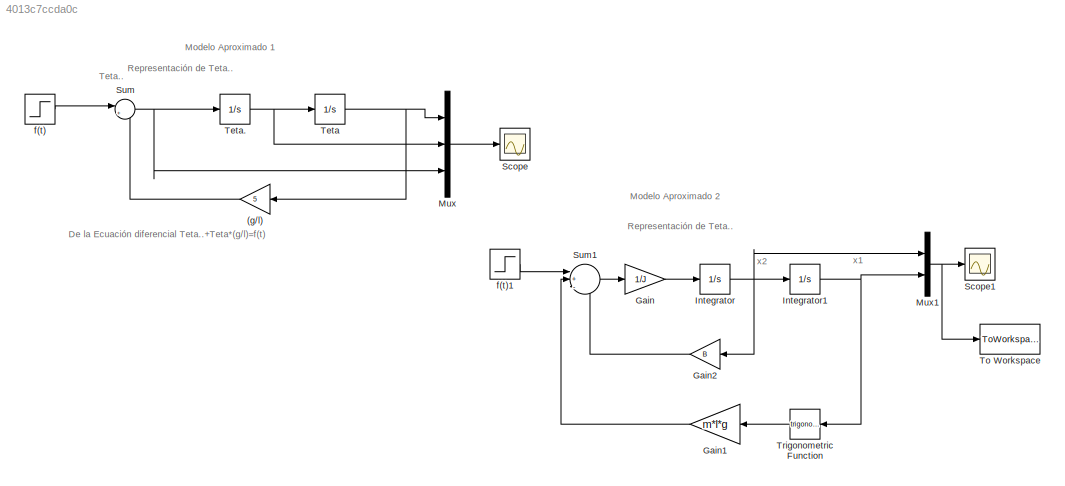
MODEL slx_4013c7ccda0c
KIND model
CONFIG AbsTol = auto
CONFIG FixedStep = auto
CONFIG MaxStep = auto
CONFIG MinStep = auto
CONFIG RelTol = 1e-3
CONFIG SampleTimeConstraint = Unconstrained
CONFIG Solver = ode45
CONFIG SolverMode = Auto
CONFIG SolverName = ode45
CONFIG StartTime = 0.0
CONFIG StopTime = 10.0
BLOCK [Gain] (g//l)
  Gain = 5
  OutDataTypeStr = Inherit: Inherit via internal rule
  ParamDataTypeStr = Inherit: Inherit via internal rule
  SaturateOnIntegerOverflow = off
BLOCK [Gain] Gain
  Gain = 1/J
  OutDataTypeStr = Inherit: Inherit via internal rule
  ParamDataTypeStr = Inherit: Inherit via internal rule
  SaturateOnIntegerOverflow = off
BLOCK [Gain] Gain1
  Gain = m*l*g
  OutDataTypeStr = Inherit: Inherit via internal rule
  ParamDataTypeStr = Inherit: Inherit via internal rule
  SaturateOnIntegerOverflow = off
BLOCK [Gain] Gain2
  Gain = B
  OutDataTypeStr = Inherit: Inherit via internal rule
  ParamDataTypeStr = Inherit: Inherit via internal rule
  SaturateOnIntegerOverflow = off
BLOCK [Integrator] Integrator
  Ports = [1, 1]
BLOCK [Integrator] Integrator1
  Ports = [1, 1]
BLOCK [Mux] Mux
  DisplayOption = bar
  Inputs = 3
  Ports = [3, 1]
BLOCK [Mux] Mux1
  DisplayOption = bar
  Inputs = 2
  Ports = [2, 1]
BLOCK [Scope] Scope
  Floating = off
  LegendLocations = 0.89132     0.85988    0.060206    0.076205
  NumInputPorts = 1
  Ports = [1]
  ShowLegends = on
BLOCK [Scope] Scope1
  Floating = off
  NumInputPorts = 1
  Ports = [1]
  SaveName = ScopeData1
BLOCK [Sum] Sum
  IconShape = round
  InputSameDT = off
  Inputs = |+-
  OutDataTypeStr = Inherit: Inherit via internal rule
  Ports = [2, 1]
  SaturateOnIntegerOverflow = off
BLOCK [Sum] Sum1
  IconShape = round
  InputSameDT = off
  Inputs = |+--
  OutDataTypeStr = Inherit: Inherit via internal rule
  Ports = [3, 1]
  SaturateOnIntegerOverflow = off
BLOCK [Integrator] Teta
  InitialCondition = pi/2
  Ports = [1, 1]
BLOCK [Integrator] Teta.
  InitialCondition = 2*pi
  Ports = [1, 1]
BLOCK [ToWorkspace] To Workspace
  FixptAsFi = on
  MaxDataPoints = inf
  Ports = [1]
  SampleTime = -1
  Save2DSignal = 3-D array (concatenate along third dimension)
  SaveFormat = Timeseries
  VariableName = Salida
BLOCK [Trigonometry] Trigonometric Function
  Ports = [1, 1]
BLOCK [Step] f(t)
  SampleTime = 0
  Time = 2
BLOCK [Step] f(t)1
  SampleTime = 0
  Time = 2
ANNOTATION (root): De la Ecuación diferencial Teta..+Teta*(g/l)=f(t)
ANNOTATION (root): Modelo Aproximado 1
ANNOTATION (root): Modelo Aproximado 2
ANNOTATION (root): Representación de Teta..
ANNOTATION (root): Teta..
ANNOTATION (root): x1
ANNOTATION (root): x2
LINE (g//l):1 -> Sum:2
LINE Gain1:1 -> Sum1:2
LINE Gain2:1 -> Sum1:3
LINE Gain:1 -> Integrator:1
NET Integrator1:1 -> Mux1:2, Trigonometric Function:1
NET Integrator:1 -> Gain2:1, Integrator1:1, Mux1:1
NET Mux1:1 -> Scope1:1, To Workspace:1
LINE Mux:1 -> Scope:1
LINE Sum1:1 -> Gain:1
NET Sum:1 -> Mux:3, Teta.:1
NET Teta.:1 -> Mux:2, Teta:1
NET Teta:1 -> (g//l):1, Mux:1
LINE Trigonometric Function:1 -> Gain1:1
LINE f(t)1:1 -> Sum1:1
LINE f(t):1 -> Sum:1
note: NET lines group one-source signal fan-out (src -> all destinations, sorted); 1:1 wires keep LINE
